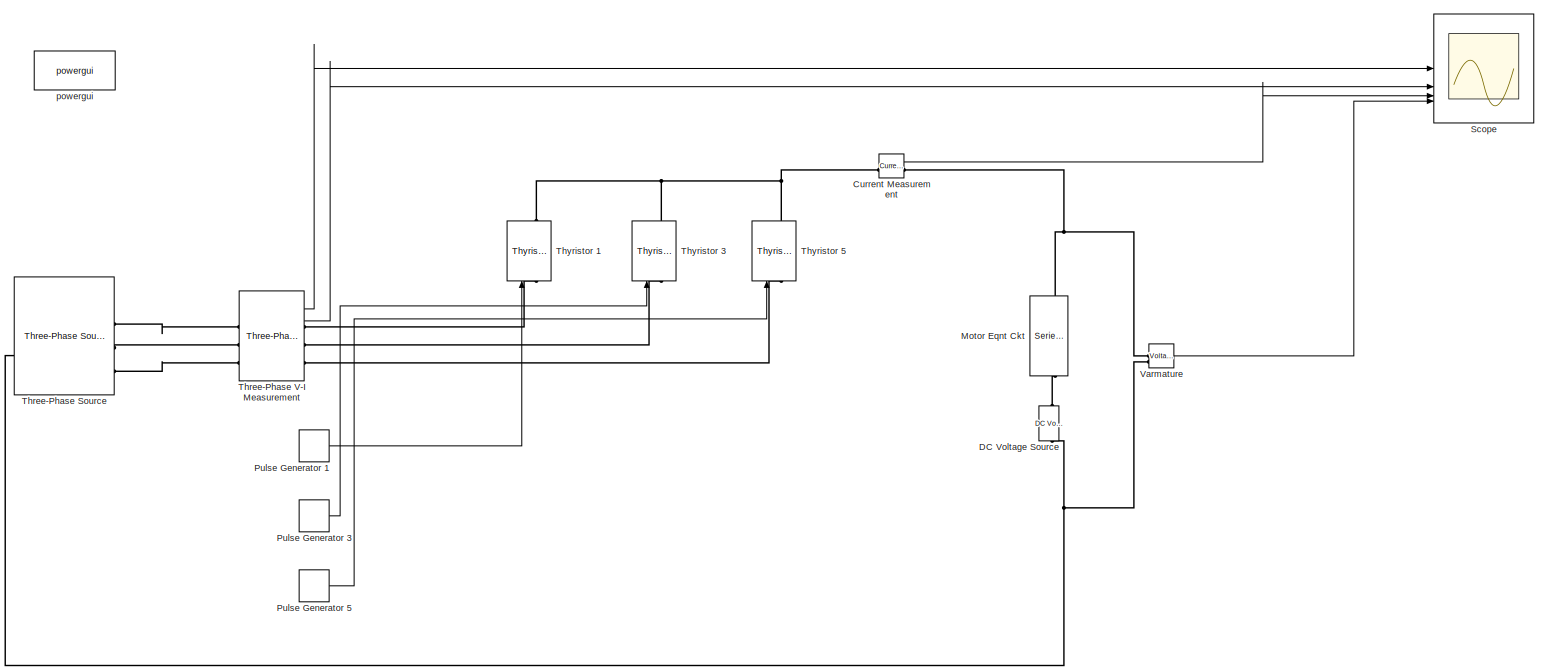
[diagram: root canvas - part 1/1, most of the canvas]
MODEL slx_17d777b9f1ca
KIND model
CONFIG AbsTol = auto
CONFIG EnableMultiTasking = off
CONFIG FixedStep = auto
CONFIG MaxStep = auto
CONFIG MinStep = auto
CONFIG RelTol = 1e-3
CONFIG SampleTimeConstraint = Unconstrained
CONFIG SolverName = VariableStepAuto
CONFIG StartTime = 0.0
CONFIG StopTime = 0.1
BLOCK [Reference] Current Measurement   REF=spsCurrentMeasurementLib/Current Measurement
  LibrarySourceBlock = sps_lib/Sensors and Measurements/Current Measurement
  SourceBlock = spsCurrentMeasurementLib/Current Measurement
  SourceType = Current Measurement
  UserDataPersistent = on
BLOCK [Reference] DC Voltage Source  REF=spsDCVoltageSourceLib/DC Voltage Source
  LibrarySourceBlock = sps_lib/Sources/DC Voltage Source
  SourceBlock = spsDCVoltageSourceLib/DC Voltage Source
  SourceType = DC Voltage Source
BLOCK [Reference] Motor Eqnt Ckt  REF=spsSeriesRLCBranchLib/Series RLC Branch
  LibrarySourceBlock = sps_lib/Passives/Series RLC Branch
  NameLocation = left
  SourceBlock = spsSeriesRLCBranchLib/Series RLC Branch
  SourceType = Series RLC Branch
BLOCK [DiscretePulseGenerator] Pulse Generator 1 
  Period = 0.02
  PhaseDelay = (30/360)*0.02
  PulseType = Time based
  PulseWidth = 5
BLOCK [DiscretePulseGenerator] Pulse Generator 3
  Period = 5
  PhaseDelay = (150/360)*0.02
  PulseType = Time based
  PulseWidth = 5
BLOCK [DiscretePulseGenerator] Pulse Generator 5
  Period = 5
  PhaseDelay = (270/360)*0.02
  PulseType = Time based
  PulseWidth = 5
BLOCK [Scope] Scope
  ActiveDisplayYMaximum = 441.92759421294284
  ActiveDisplayYMinimum = -441.94016668285349
  ContainerLayout = {"WindowBounds":[118,77,1309,844]}
  Floating = off
  GraphicalSettings = {"Style":{"BackgroundColor":[0.12941176470588237,0.12941176470588237,0.12941176470588237],"AxesColor":[0.07058823529411765,0.07058823529411765,0.07058823529411765],"LabelsColor":[0.8509803921568627,0.8509803921568627,0.8509803921568627],"PreserveColors":false,"Visible":[true,true,true,true,true,true,true,true],"LineStyle":["-","-","-","-","-","-","-","-"],"LineWidth":[1.5,1.5,1.5,1.5,1.5,1.5,1.5,1...<+4719ch>
  LayoutDimensionsString = [5 1]
  MultipleDisplayCache = [{"MaxYLimMag":441.94016668285349,"MaxYLimReal":441.92759421294284,"MinYLimMag":0,"MinYLimReal":-441.94016668285349,"PlotAsMagnitudePhase":false,"ShowGrid":true,"ShowLegend":false,"Title":"%<SignalLabel>","YLabel":""},{"MaxYLimMag":107.11594907428018,"MaxYLimReal":107.11594907428018,"MinYLimMag":0,"MinYLimReal":-11.932162833660408,"PlotAsMagnitudePhase":false,"ShowGrid":true,"ShowLegend":false,"Ti...<+685ch>
  NumInputPorts = 4
  ScopeFrameLocation = container
  Visible = on
  WasSavedAsWebScope = on
  WindowPosition = [126.000000,47.000000,1294.000000,806.000000,]
BLOCK [Reference] Three-Phase Source   REF=spsThreePhaseSourceLib/Three-Phase Source
  LibrarySourceBlock = sps_lib/Sources/Three-Phase Source
  NameLocation = top
  SourceBlock = spsThreePhaseSourceLib/Three-Phase Source
  SourceType = Three-Phase Source
BLOCK [Reference] Three-Phase V-I Measurement  REF=spsThreePhaseVIMeasurementLib/Three-Phase
V-I Measurement
  LibrarySourceBlock = sps_lib/Sensors and Measurements/Three-Phase\nV-I Measurement
  SourceBlock = spsThreePhaseVIMeasurementLib/Three-Phase\nV-I Measurement
  SourceType = Three-Phase VI Measurement
BLOCK [Reference] Thyristor 1  REF=spsThyristorLib/Thyristor
  LibrarySourceBlock = sps_lib/Power Electronics/Thyristor
  NameLocation = right
  SourceBlock = spsThyristorLib/Thyristor
  SourceType = Thyristor
BLOCK [Reference] Thyristor 3  REF=spsThyristorLib/Thyristor
  LibrarySourceBlock = sps_lib/Power Electronics/Thyristor
  NameLocation = right
  SourceBlock = spsThyristorLib/Thyristor
  SourceType = Thyristor
BLOCK [Reference] Thyristor 5  REF=spsThyristorLib/Thyristor
  LibrarySourceBlock = sps_lib/Power Electronics/Thyristor
  NameLocation = right
  SourceBlock = spsThyristorLib/Thyristor
  SourceType = Thyristor
BLOCK [Reference] Varmature  REF=spsVoltageMeasurementLib/Voltage Measurement
  LibrarySourceBlock = sps_lib/Sensors and Measurements/Voltage Measurement
  SourceBlock = spsVoltageMeasurementLib/Voltage Measurement
  SourceType = Voltage Measurement
  UserDataPersistent = on
BLOCK [Reference] powergui  REF=sps_lib/powergui
  LibrarySourceBlock = sps_lib/powergui
  Priority = 1
  SourceBlock = sps_lib/powergui
  SourceType = PSB option menu block
LINE Current Measurement :1 -> Scope:3
LINE Pulse Generator 1 :1 -> Thyristor 1:1
LINE Pulse Generator 3:1 -> Thyristor 3:1
LINE Pulse Generator 5:1 -> Thyristor 5:1
LINE Three-Phase V-I Measurement:1 -> Scope:1
LINE Three-Phase V-I Measurement:2 -> Scope:2
LINE Varmature:1 -> Scope:4
PNET net1: Current Measurement :LConn1 -- Thyristor 1:RConn1 -- Thyristor 3:RConn1 -- Thyristor 5:RConn1
PNET net2: Current Measurement :RConn1 -- Motor Eqnt Ckt:LConn1 -- Varmature:LConn1
PNET net3: DC Voltage Source:LConn1 -- Three-Phase Source :LConn1 -- Varmature:LConn2
PLINE DC Voltage Source:RConn1 -- Motor Eqnt Ckt:RConn1
PLINE Three-Phase Source :RConn1 -- Three-Phase V-I Measurement:LConn1
PLINE Three-Phase Source :RConn2 -- Three-Phase V-I Measurement:LConn2
PLINE Three-Phase Source :RConn3 -- Three-Phase V-I Measurement:LConn3
PLINE Three-Phase V-I Measurement:RConn1 -- Thyristor 1:LConn1
PLINE Three-Phase V-I Measurement:RConn2 -- Thyristor 3:LConn1
PLINE Three-Phase V-I Measurement:RConn3 -- Thyristor 5:LConn1
note: PNET lines group multi-terminal physical nets as a canonical sorted terminal list (undirected conserving connections); 2-terminal nets keep the pairwise PLINE form
